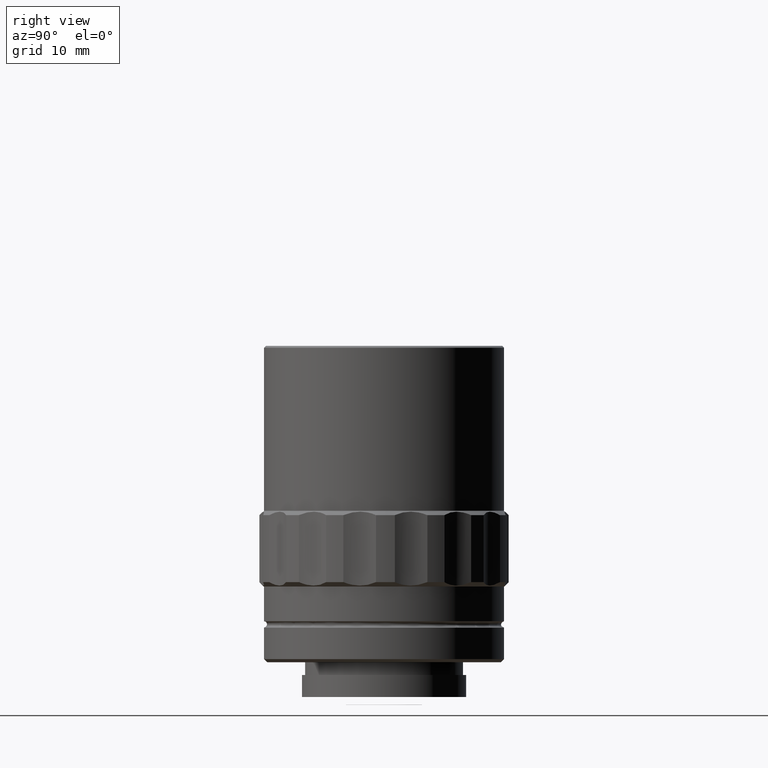
[diagram: clean part render]
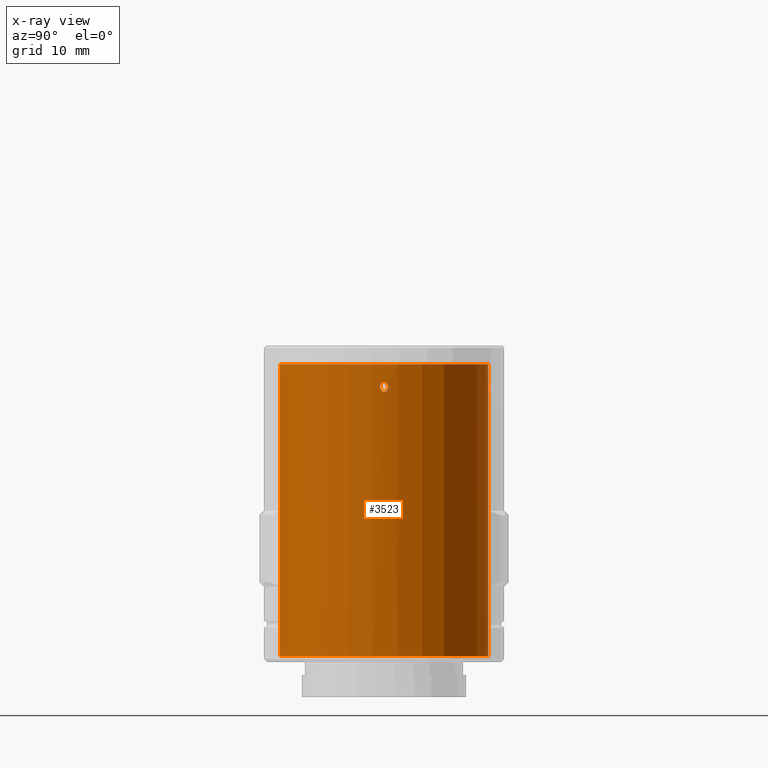
[diagram: x-ray — body ghosted, one internal face saturated and labeled with its STEP entity id]
A machine part, right view, then the same camera in x-ray: the body is ghosted and one INTERNAL B-rep face — a face not visible from any outside direction — is saturated and labeled: STEP entity #3523.
In plain terms, the highlighted cylindrical surface (bore or boss wall) has radius 16.5 mm, axis along (-0, -0, -1).
Its self-contained STEP definition (entity closure, byte-faithful):
#19 = CARTESIAN_POINT ( 'NONE',  ( 16.49210616878920632, -0.5317817277032486079, 47.87312896116172567 ) ) ;
#31 = CARTESIAN_POINT ( 'NONE',  ( 0.1830533109390029278, -16.49898455921922391, 47.49000000000000199 ) ) ;
#64 = CARTESIAN_POINT ( 'NONE',  ( 0.3943610013584866736, -16.49664013782653882, 47.49000000000000199 ) ) ;
#68 = VERTEX_POINT ( 'NONE', #3457 ) ;
#92 = VERTEX_POINT ( 'NONE', #3855 ) ;
#152 = DIRECTION ( 'NONE',  ( -1.734723475976809020E-18, -1.474514954580309450E-17, -1.000000000000000000 ) ) ;
#153 = CARTESIAN_POINT ( 'NONE',  ( -16.47198209292312754, -0.9619881517812586269, 48.08056164763549845 ) ) ;
#175 = B_SPLINE_CURVE_WITH_KNOTS ( 'NONE', 3,
 ( #2664, #1026, #2015, #3709, #330, #981, #3384, #269, #1362, #357, #1640, #3338, #1276, #2623, #2642, #1338, #3985, #2315, #2686, #1003, #2461, #4127, #1770, #2095, #3447, #2815 ),
 .UNSPECIFIED., .T., .F.,
 ( 4, 2, 2, 2, 2, 2, 2, 2, 2, 2, 2, 2, 4 ),
 ( 0.000000000000000000, 0.0003124784037549400571, 0.0006249568075098801143, 0.001249913615019760229, 0.001562392018774710640, 0.001874870422529660834, 0.002499827230039575968, 0.002812305633794533969, 0.003124784037549491536, 0.003749740845059407104, 0.004062219248814355130, 0.004374697652569301855, 0.004999654460079182294 ),
 .UNSPECIFIED. ) ;
#257 = B_SPLINE_CURVE_WITH_KNOTS ( 'NONE', 3,
 ( #1209, #449, #153, #4182, #2556, #3149, #1525, #3895, #2867, #2512, #1183, #1818, #2528, #852, #1227, #518, #539, #873, #3559, #3234, #1989, #560, #603, #3014, #3638, #2658 ),
 .UNSPECIFIED., .T., .F.,
 ( 4, 2, 2, 2, 2, 2, 2, 2, 2, 2, 2, 2, 4 ),
 ( 0.000000000000000000, 0.0003126262100083241377, 0.0006252524200166482754, 0.001250504840033311079, 0.001563131050041642427, 0.001875757260049973774, 0.002501009680066636470, 0.002813635890074957843, 0.003126262100083279215, 0.003751514520099921961, 0.004064140730108242901, 0.004376766940116564274, 0.005002019360133221765 ),
 .UNSPECIFIED. ) ;
#269 = CARTESIAN_POINT ( 'NONE',  ( -0.9827883289545977785, 16.47070511849663532, 48.18433641717907534 ) ) ;
#309 = EDGE_LOOP ( 'NONE', ( #2983 ) ) ;
#315 = CARTESIAN_POINT ( 'NONE',  ( 16.50026452034326852, -0.02561418185967460209, 47.51061463198924173 ) ) ;
#330 = CARTESIAN_POINT ( 'NONE',  ( -0.6746501055307421169, 16.48636700781249687, 48.92961238646553568 ) ) ;
#341 = DIRECTION ( 'NONE',  ( 0.01109414005692111425, -0.9999384581344982204, 0.000000000000000000 ) ) ;
#357 = CARTESIAN_POINT ( 'NONE',  ( -0.8818244213290510336, 16.47646800982743898, 47.88699145539422375 ) ) ;
#361 = CARTESIAN_POINT ( 'NONE',  ( 16.47624786115299855, 0.8975600904707393690, 48.70687057508145301 ) ) ;
#384 = CARTESIAN_POINT ( 'NONE',  ( -0.4566539519797769286, -16.49384459140554071, 48.78170844766215453 ) ) ;
#403 = CARTESIAN_POINT ( 'NONE',  ( -0.5160453627911611996, -16.49197712745386468, 48.69300854460678352 ) ) ;
#449 = CARTESIAN_POINT ( 'NONE',  ( -16.47070509088094781, -0.9827887917701081388, 48.18428966922810019 ) ) ;
#476 = CARTESIAN_POINT ( 'NONE',  ( 0.8224902208560701533, -16.47965266637151416, 47.79829313634395049 ) ) ;
#481 = EDGE_CURVE ( 'NONE', #68, #68, #257, .T. ) ;
#518 = CARTESIAN_POINT ( 'NONE',  ( -16.49198009393705888, 0.5159533490737677752, 48.69318038075327593 ) ) ;
#525 = EDGE_CURVE ( 'NONE', #92, #92, #3811, .T. ) ;
#539 = CARTESIAN_POINT ( 'NONE',  ( -16.49384894428683879, 0.4565064905318807487, 48.78191015233934280 ) ) ;
#544 = EDGE_LOOP ( 'NONE', ( #2250 ) ) ;
#560 = CARTESIAN_POINT ( 'NONE',  ( -16.48989778081981328, -0.5853686921290216505, 48.98933209334279582 ) ) ;
#576 = AXIS2_PLACEMENT_3D ( 'NONE', #1675, #4337, #2954 ) ;
#603 = CARTESIAN_POINT ( 'NONE',  ( -16.48641813462959860, -0.6735031642762363546, 48.93070386271597982 ) ) ;
#700 = CARTESIAN_POINT ( 'NONE',  ( 16.49665620463744631, 0.3922890164478161634, 47.49014274707425898 ) ) ;
#852 = CARTESIAN_POINT ( 'NONE',  ( -16.48845571497203011, 0.6171127412450180261, 48.39571026404974674 ) ) ;
#872 = FACE_BOUND ( 'NONE', #2808, .T. ) ;
#873 = CARTESIAN_POINT ( 'NONE',  ( -16.49898623654730656, 0.2350698994373220663, 49.00326781444358915 ) ) ;
#981 = CARTESIAN_POINT ( 'NONE',  ( -0.8958921053378651189, 16.47632170298688337, 48.70842817365424082 ) ) ;
#986 = CARTESIAN_POINT ( 'NONE',  ( 16.48845571497202656, -0.6171127412450713168, 48.29000000000037573 ) ) ;
#1003 = CARTESIAN_POINT ( 'NONE',  ( 0.6171122779337423481, 16.48845573231234951, 48.39566319351074952 ) ) ;
#1026 = CARTESIAN_POINT ( 'NONE',  ( -0.2887071561477514425, 16.49781234852293466, 49.09000000000013841 ) ) ;
#1036 = EDGE_CURVE ( 'NONE', #4190, #4190, #1844, .T. ) ;
#1063 = VERTEX_POINT ( 'NONE', #31 ) ;
#1074 = CARTESIAN_POINT ( 'NONE',  ( -0.6171136678509744344, -16.48845568029199526, 48.07868335304944907 ) ) ;
#1095 = CARTESIAN_POINT ( 'NONE',  ( -0.2353989893099553421, -16.49898046138054397, 49.00304720412069770 ) ) ;
#1142 = CARTESIAN_POINT ( 'NONE',  ( -0.5963088515768992792, -16.48927009125784338, 48.49934027345467769 ) ) ;
#1183 = CARTESIAN_POINT ( 'NONE',  ( -16.49730279208880290, 0.3075548905120296106, 47.64929632924435055 ) ) ;
#1209 = CARTESIAN_POINT ( 'NONE',  ( -16.47070509088094781, -0.9827887917701084719, 48.28999999999999915 ) ) ;
#1227 = CARTESIAN_POINT ( 'NONE',  ( -16.48927090743226742, 0.5962887040220644641, 48.49943900190641699 ) ) ;
#1276 = CARTESIAN_POINT ( 'NONE',  ( -0.3943553416576851545, 16.49664026045357801, 47.48999876600669268 ) ) ;
#1282 = CARTESIAN_POINT ( 'NONE',  ( 1.837869121620104876E-16, -1.058399996909639969E-15, 51.89000000000000767 ) ) ;
#1321 = CARTESIAN_POINT ( 'NONE',  ( 16.48927090064437095, -0.5962888888040535074, 48.49943835236488354 ) ) ;
#1338 = CARTESIAN_POINT ( 'NONE',  ( 0.2199822602825164120, 16.49881777121110105, 47.59102233257385706 ) ) ;
#1362 = CARTESIAN_POINT ( 'NONE',  ( -0.9620080916822697503, 16.47198084082352310, 48.08065972654650011 ) ) ;
#1368 = CARTESIAN_POINT ( 'NONE',  ( 16.49384893626630344, -0.4565067823027185168, 48.78190978778820153 ) ) ;
#1416 = CARTESIAN_POINT ( 'NONE',  ( 0.5859859704596465102, -16.48987569646583751, 48.98897766742554438 ) ) ;
#1484 = CARTESIAN_POINT ( 'NONE',  ( 0.8958927426416795070, -16.47632165943210580, 48.70842668633379446 ) ) ;
#1525 = CARTESIAN_POINT ( 'NONE',  ( -16.49665620317167836, -0.3922891481690584659, 47.49014274716429185 ) ) ;
#1528 = CARTESIAN_POINT ( 'NONE',  ( 16.48845571497202656, -0.6171127412450713168, 48.29000000000038995 ) ) ;
#1578 = ORIENTED_EDGE ( 'NONE', *, *, #4331, .F. ) ;
#1640 = CARTESIAN_POINT ( 'NONE',  ( -0.8224890635640249581, 16.47965272624437816, 47.79829155233878168 ) ) ;
#1644 = CARTESIAN_POINT ( 'NONE',  ( 16.50013962910817256, 0.07925510419655992789, 47.48992890642229980 ) ) ;
#1675 = CARTESIAN_POINT ( 'NONE',  ( 1.036426875718819209E-16, -1.739625905925742843E-15, 5.690000000000003944 ) ) ;
#1770 = CARTESIAN_POINT ( 'NONE',  ( 0.4566551103167876269, 16.49384455722411502, 48.78170686365507436 ) ) ;
#1818 = CARTESIAN_POINT ( 'NONE',  ( -16.49210615891869125, 0.5317820428622923590, 47.87312942491821133 ) ) ;
#1825 = CARTESIAN_POINT ( 'NONE',  ( -0.3087024167775939687, -16.49727712984954664, 47.65038761353520158 ) ) ;
#1844 = CIRCLE ( 'NONE', #2387, 16.50000000000001776 ) ;
#1849 = CARTESIAN_POINT ( 'NONE',  ( 0.6014050870493841128, -16.48969619465050940, 47.57695452099314082 ) ) ;
#1888 = FACE_BOUND ( 'NONE', #2325, .T. ) ;
#1891 = VERTEX_POINT ( 'NONE', #1528 ) ;
#1929 = CYLINDRICAL_SURFACE ( 'NONE', #2282, 16.50000000000001776 ) ;
#1989 = CARTESIAN_POINT ( 'NONE',  ( -16.49563451742448095, -0.3916978365593759004, 49.06938536801084894 ) ) ;
#2015 = CARTESIAN_POINT ( 'NONE',  ( -0.3923660883291807955, 16.49561847907847678, 49.06920727596394727 ) ) ;
#2037 = CARTESIAN_POINT ( 'NONE',  ( 16.49898623313296397, -0.2350701544960878964, 49.00326770524390696 ) ) ;
#2058 = EDGE_LOOP ( 'NONE', ( #4040 ) ) ;
#2085 = CARTESIAN_POINT ( 'NONE',  ( -0.5301128299990324200, -16.49214297513195149, 47.87157182634680908 ) ) ;
#2095 = CARTESIAN_POINT ( 'NONE',  ( 0.2354015638977341174, 16.49898041620495093, 49.00304547900621799 ) ) ;
#2102 = CARTESIAN_POINT ( 'NONE',  ( 0.6746522323480295125, -16.48636691855532632, 48.92961068528808966 ) ) ;
#2184 = FACE_BOUND ( 'NONE', #309, .T. ) ;
#2235 = EDGE_CURVE ( 'NONE', #1891, #1891, #2268, .T. ) ;
#2245 = FACE_BOUND ( 'NONE', #2930, .T. ) ;
#2250 = ORIENTED_EDGE ( 'NONE', *, *, #1036, .F. ) ;
#2268 = B_SPLINE_CURVE_WITH_KNOTS ( 'NONE', 3,
 ( #2379, #4034, #1321, #4365, #1368, #2037, #3389, #2691, #2298, #3631, #2670, #361, #4052, #3322, #2731, #3066, #3365, #4011, #700, #1644, #315, #3649, #3044, #19, #2709, #986 ),
 .UNSPECIFIED., .T., .F.,
 ( 4, 2, 2, 2, 2, 2, 2, 2, 2, 2, 2, 2, 4 ),
 ( 0.000000000000000000, 0.0003126262100083328113, 0.0006252524200166656226, 0.001250504840033346207, 0.001563131050041686445, 0.001875757260050026900, 0.002501009680066693715, 0.002813635890075016389, 0.003126262100083339063, 0.003751514520099970967, 0.004064140730108286269, 0.004376766940116602438, 0.005002019360133218295 ),
 .UNSPECIFIED. ) ;
#2282 = AXIS2_PLACEMENT_3D ( 'NONE', #2888, #152, #2597 ) ;
#2298 = CARTESIAN_POINT ( 'NONE',  ( 16.49563451466342556, 0.3916979661495050835, 49.06938534258159024 ) ) ;
#2315 = CARTESIAN_POINT ( 'NONE',  ( 0.5301134681111063784, 16.49214294572771777, 47.87157331366521618 ) ) ;
#2325 = EDGE_LOOP ( 'NONE', ( #3889 ) ) ;
#2372 = CARTESIAN_POINT ( 'NONE',  ( -0.1830533109379987033, 16.49898455921927010, 49.08999999999998920 ) ) ;
#2379 = CARTESIAN_POINT ( 'NONE',  ( 16.48845571497202656, -0.6171127412450713168, 48.29000000000037573 ) ) ;
#2387 = AXIS2_PLACEMENT_3D ( 'NONE', #1282, #3369, #341 ) ;
#2424 = CARTESIAN_POINT ( 'NONE',  ( 0.2887113326358518028, -16.49781227226766589, 49.08999938298273946 ) ) ;
#2446 = CARTESIAN_POINT ( 'NONE',  ( 0.1830533109390029278, -16.49898455921922746, 47.48999999999999488 ) ) ;
#2461 = CARTESIAN_POINT ( 'NONE',  ( 0.5963090136539678232, 16.48927008471072497, 48.49933948578888732 ) ) ;
#2493 = CARTESIAN_POINT ( 'NONE',  ( 0.9827883289571690550, -16.47070511849648966, 48.18433680648807638 ) ) ;
#2512 = CARTESIAN_POINT ( 'NONE',  ( -16.49882615178873380, 0.2193648811754397576, 47.59066803281305624 ) ) ;
#2527 = FACE_OUTER_BOUND ( 'NONE', #2058, .T. ) ;
#2528 = CARTESIAN_POINT ( 'NONE',  ( -16.48845571497203366, 0.6171127412451720140, 48.07857947190165504 ) ) ;
#2556 = CARTESIAN_POINT ( 'NONE',  ( -16.47966033527670149, -0.8223420265130356732, 47.79809021221210941 ) ) ;
#2597 = DIRECTION ( 'NONE',  ( 0.01109414005692111425, -0.9999384581344982204, 0.000000000000000000 ) ) ;
#2623 = CARTESIAN_POINT ( 'NONE',  ( -0.07739528857968459852, 16.50015678634247251, 47.49000061701711672 ) ) ;
#2642 = CARTESIAN_POINT ( 'NONE',  ( 0.02628641541355188765, 16.50026330295475319, 47.51079380120742002 ) ) ;
#2658 = CARTESIAN_POINT ( 'NONE',  ( -16.47070509088094781, -0.9827887917701084719, 48.28999999999999915 ) ) ;
#2664 = CARTESIAN_POINT ( 'NONE',  ( -0.1830533109379987589, 16.49898455921927365, 49.08999999999998920 ) ) ;
#2670 = CARTESIAN_POINT ( 'NONE',  ( 16.48641812380194338, 0.6735034311074988844, 48.93070367075542748 ) ) ;
#2686 = CARTESIAN_POINT ( 'NONE',  ( 0.6171136678448544410, 16.48845568029220487, 48.07868413164259636 ) ) ;
#2691 = CARTESIAN_POINT ( 'NONE',  ( 16.49783638209854431, 0.2868516600248153248, 49.09007109362264742 ) ) ;
#2709 = CARTESIAN_POINT ( 'NONE',  ( 16.48845571497202656, -0.6171127412451742345, 48.07857933845662046 ) ) ;
#2712 = CARTESIAN_POINT ( 'NONE',  ( 0.1830533109390029278, -16.49898455921922746, 47.48999999999999488 ) ) ;
#2731 = CARTESIAN_POINT ( 'NONE',  ( 16.47198210380913608, 0.9619879671951517830, 48.08056099809321182 ) ) ;
#2808 = EDGE_LOOP ( 'NONE', ( #3900 ) ) ;
#2815 = CARTESIAN_POINT ( 'NONE',  ( -0.1830533109379987589, 16.49898455921927365, 49.08999999999998920 ) ) ;
#2851 = CARTESIAN_POINT ( 'NONE',  ( 0.9827897173724450264, -16.47070503565128519, 48.50131586835609454 ) ) ;
#2867 = CARTESIAN_POINT ( 'NONE',  ( -16.50026452045808512, 0.02561431147842253842, 47.51061465741832279 ) ) ;
#2888 = CARTESIAN_POINT ( 'NONE',  ( 8.354839166315488270E-17, -1.910427421149925140E-15, -5.893572936552369690 ) ) ;
#2930 = EDGE_LOOP ( 'NONE', ( #1578 ) ) ;
#2954 = DIRECTION ( 'NONE',  ( 0.01109414005692111425, -0.9999384581344982204, 0.000000000000000000 ) ) ;
#2983 = ORIENTED_EDGE ( 'NONE', *, *, #2235, .F. ) ;
#2997 = VERTEX_POINT ( 'NONE', #2372 ) ;
#3014 = CARTESIAN_POINT ( 'NONE',  ( -16.47624787801350621, -0.8975597756078389500, 48.70687103883865632 ) ) ;
#3044 = CARTESIAN_POINT ( 'NONE',  ( 16.49730279699360480, -0.3075546235068278289, 47.64929613728424584 ) ) ;
#3066 = CARTESIAN_POINT ( 'NONE',  ( 16.47647301708093792, 0.8817324960783144983, 47.88681961924639552 ) ) ;
#3092 = B_SPLINE_CURVE_WITH_KNOTS ( 'NONE', 3,
 ( #2712, #3805, #4093, #4187, #1825, #2085, #1074, #3413, #1142, #403, #384, #1095, #3477, #2424, #3154, #1416, #2102, #1484, #2851, #2493, #4114, #4135, #476, #1849, #64, #2446 ),
 .UNSPECIFIED., .T., .F.,
 ( 4, 2, 2, 2, 2, 2, 2, 2, 2, 2, 2, 2, 4 ),
 ( 0.000000000000000000, 0.0003124784037549725290, 0.0006249568075099450580, 0.001249913615019875371, 0.001562392018774830119, 0.001874870422529785301, 0.002499827230039680052, 0.002812305633794628078, 0.003124784037549575670, 0.003749740845059470855, 0.004062219248814408039, 0.004374697652569345223, 0.004999654460079220458 ),
 .UNSPECIFIED. ) ;
#3149 = CARTESIAN_POINT ( 'NONE',  ( -16.48970936309865110, -0.6010738882887184387, 47.57673229475625476 ) ) ;
#3154 = CARTESIAN_POINT ( 'NONE',  ( 0.3923698776275074684, -16.49561838554714299, 49.06920619879225853 ) ) ;
#3214 = FACE_OUTER_BOUND ( 'NONE', #544, .T. ) ;
#3234 = CARTESIAN_POINT ( 'NONE',  ( -16.49783638282708154, -0.2868515941635764177, 49.09007109357773402 ) ) ;
#3322 = CARTESIAN_POINT ( 'NONE',  ( 16.47070509088095136, 0.9827887917701056963, 48.18428973595063525 ) ) ;
#3323 = EDGE_CURVE ( 'NONE', #2997, #2997, #175, .T. ) ;
#3338 = CARTESIAN_POINT ( 'NONE',  ( -0.6014025140997082408, 16.48969629693704775, 47.57695279587984061 ) ) ;
#3365 = CARTESIAN_POINT ( 'NONE',  ( 16.47966034976877125, 0.8223417349914975416, 47.79808984766036417 ) ) ;
#3369 = DIRECTION ( 'NONE',  ( -1.734723475976809020E-18, -1.474514954580309450E-17, -1.000000000000000000 ) ) ;
#3384 = CARTESIAN_POINT ( 'NONE',  ( -0.9827897173779294171, 16.47070503565095123, 48.50131664695186373 ) ) ;
#3389 = CARTESIAN_POINT ( 'NONE',  ( 16.50129907397262841, -0.02618267985697825262, 49.08985725283586277 ) ) ;
#3413 = CARTESIAN_POINT ( 'NONE',  ( -0.6171122779308543249, -16.48845573231245965, 48.39566358282204561 ) ) ;
#3447 = CARTESIAN_POINT ( 'NONE',  ( 0.02825437948150661890, 16.50132898061194808, 49.08999999999968367 ) ) ;
#3457 = CARTESIAN_POINT ( 'NONE',  ( -16.47070509088095136, -0.9827887917701084719, 48.28999999999999915 ) ) ;
#3477 = CARTESIAN_POINT ( 'NONE',  ( -0.02824871845077268906, -16.50132897763745632, 49.09000123399359694 ) ) ;
#3523 = ADVANCED_FACE ( 'NONE', ( #2527, #2245, #3214, #872, #1888, #2184 ), #1929, .F. ) ;
#3559 = CARTESIAN_POINT ( 'NONE',  ( -16.50129907251553618, 0.02618254813639776454, 49.08985725292564695 ) ) ;
#3631 = CARTESIAN_POINT ( 'NONE',  ( 16.48989777271804513, 0.5853689292652612952, 48.98933196718676442 ) ) ;
#3638 = CARTESIAN_POINT ( 'NONE',  ( -16.47070509088095136, -0.9827887917701091380, 48.50142066154379705 ) ) ;
#3649 = CARTESIAN_POINT ( 'NONE',  ( 16.49882615462716728, -0.2193646439185041319, 47.59066790665738722 ) ) ;
#3709 = CARTESIAN_POINT ( 'NONE',  ( -0.5859833393804906310, 16.48987579336347409, 48.98897925064385106 ) ) ;
#3805 = CARTESIAN_POINT ( 'NONE',  ( 0.07739946572924921719, -16.50015676991557001, 47.48999999999999488 ) ) ;
#3811 = CIRCLE ( 'NONE', #576, 16.50000000000001776 ) ;
#3855 = CARTESIAN_POINT ( 'NONE',  ( 0.1830533109391986879, -16.49898455921924167, 5.690000000000003944 ) ) ;
#3889 = ORIENTED_EDGE ( 'NONE', *, *, #3323, .F. ) ;
#3895 = CARTESIAN_POINT ( 'NONE',  ( -16.50013962984106897, -0.07925503833614493121, 47.48992890637728692 ) ) ;
#3900 = ORIENTED_EDGE ( 'NONE', *, *, #481, .F. ) ;
#3985 = CARTESIAN_POINT ( 'NONE',  ( 0.3087045450498198673, 16.49727708780188351, 47.65038931471119099 ) ) ;
#4011 = CARTESIAN_POINT ( 'NONE',  ( 16.48970937217114496, 0.6010736333678179388, 47.57673218555620309 ) ) ;
#4034 = CARTESIAN_POINT ( 'NONE',  ( 16.48845571497202656, -0.6171127412450198024, 48.39571033077226048 ) ) ;
#4040 = ORIENTED_EDGE ( 'NONE', *, *, #525, .F. ) ;
#4052 = CARTESIAN_POINT ( 'NONE',  ( 16.47070509088095491, 0.9827887917701061404, 48.50142052809875537 ) ) ;
#4093 = CARTESIAN_POINT ( 'NONE',  ( -0.02628262497511645729, -16.50026331239021360, 47.51079272403635656 ) ) ;
#4114 = CARTESIAN_POINT ( 'NONE',  ( 0.9620082535735479112, -16.47198083068206742, 48.08066051420995279 ) ) ;
#4127 = CARTESIAN_POINT ( 'NONE',  ( 0.5160460879059156625, 16.49197710407874951, 48.69300719155694424 ) ) ;
#4135 = CARTESIAN_POINT ( 'NONE',  ( 0.8818251457455348330, -16.47646797037010913, 47.88699280844204509 ) ) ;
#4138 = CARTESIAN_POINT ( 'NONE',  ( 0.1830533109391987434, -16.49898455921923812, 51.89000000000000767 ) ) ;
#4182 = CARTESIAN_POINT ( 'NONE',  ( -16.47647300245565560, -0.8817327673948744948, 47.88682007028083376 ) ) ;
#4187 = CARTESIAN_POINT ( 'NONE',  ( -0.2199796277031963454, -16.49881780970932965, 47.59102074935674409 ) ) ;
#4190 = VERTEX_POINT ( 'NONE', #4138 ) ;
#4331 = EDGE_CURVE ( 'NONE', #1063, #1063, #3092, .T. ) ;
#4337 = DIRECTION ( 'NONE',  ( 1.734723475976809020E-18, 1.474514954580309450E-17, 1.000000000000000000 ) ) ;
#4365 = CARTESIAN_POINT ( 'NONE',  ( 16.49198008533507220, -0.5159536206476449394, 48.69317992971947717 ) ) ;